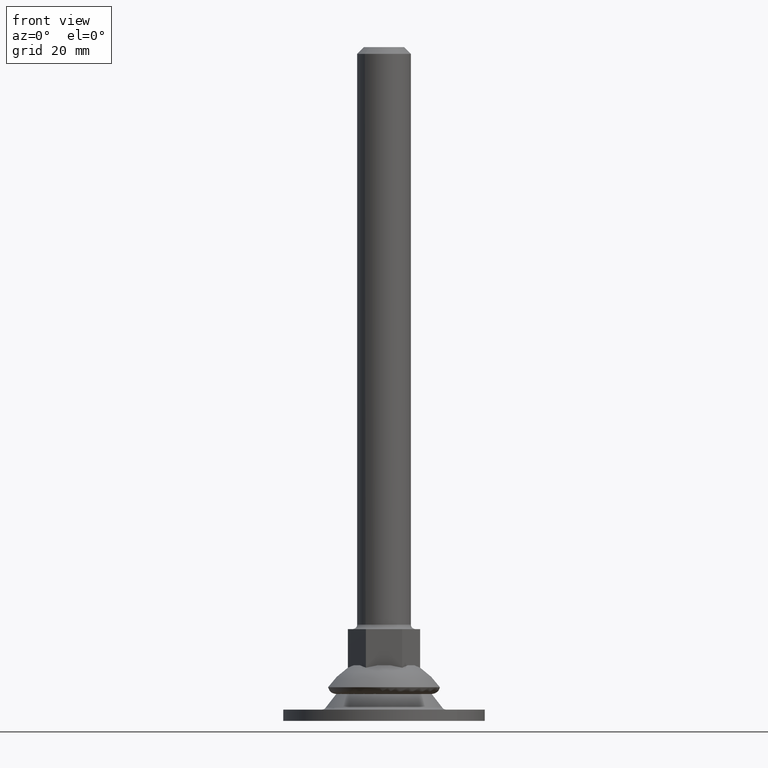
[diagram: clean part render]
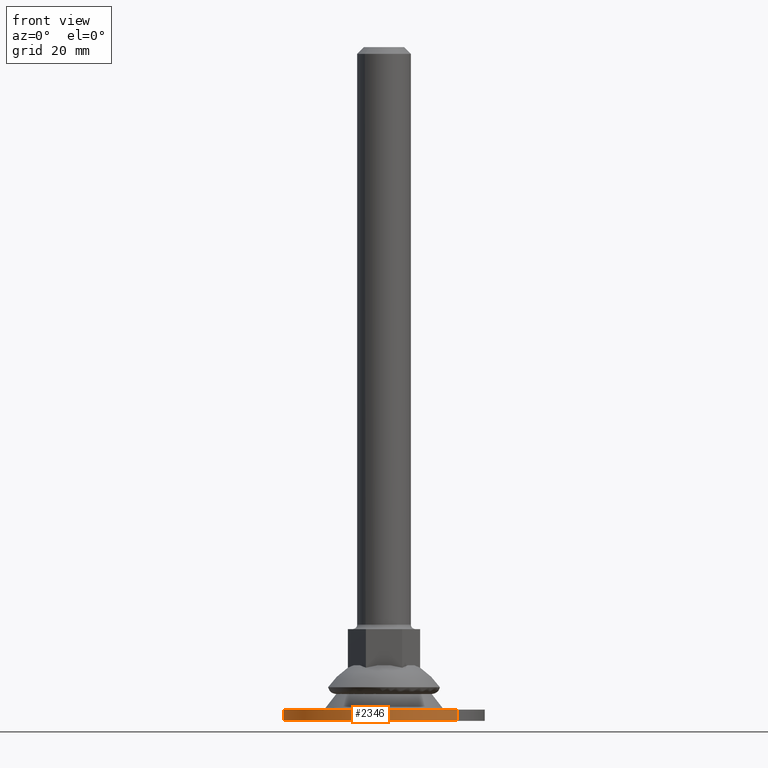
[diagram: same view with one face highlighted and labeled with its STEP entity id]
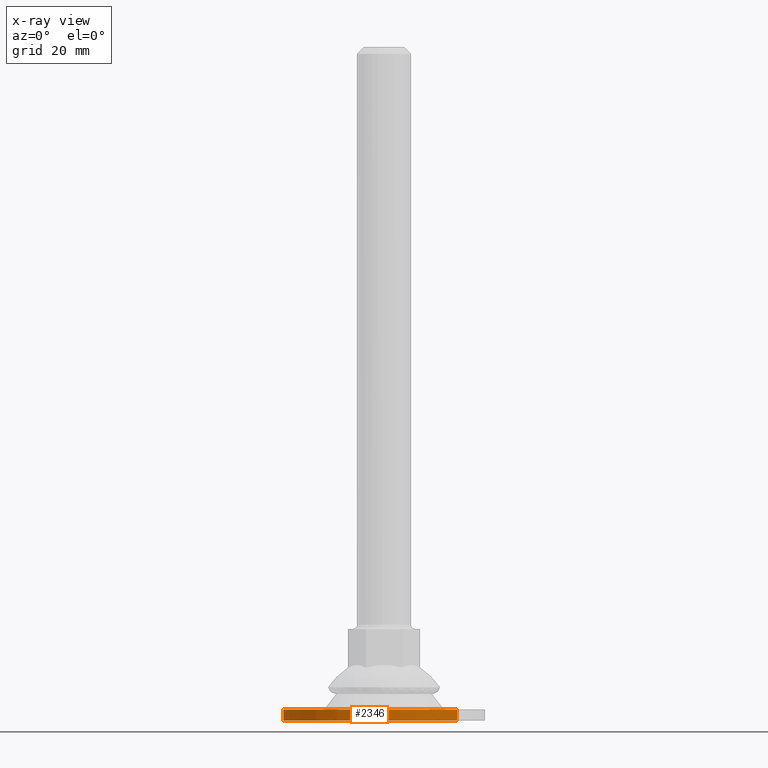
[diagram: x-ray of the same camera — body ghosted, the highlighted face saturated]
A machine part, front view. The second image highlights one B-rep face of the part: STEP entity #2346.
The next image is the same camera in x-ray: the body ghosted, the highlighted face saturated — about 0% of this face is hidden behind the body in this view.
In plain terms, the highlighted face is a freeform B-spline surface patch.
Its self-contained STEP definition (entity closure, byte-faithful):
#1972=CARTESIAN_POINT('',(-22.500000000000000,0.0,0.0));
#1973=VERTEX_POINT('',#1972);
#1974=CARTESIAN_POINT('',(-16.320922946411649,15.487977669410711,1.926750E-011));
#1975=VERTEX_POINT('',#1974);
#1976=CARTESIAN_POINT('',(-22.500000000000000,0.0,0.0));
#1977=CARTESIAN_POINT('',(-22.500113968359958,1.290084206286593,1.604903E-012));
#1978=CARTESIAN_POINT('',(-22.304316878680979,3.558807770512854,4.427262E-012));
#1979=CARTESIAN_POINT('',(-21.570845771034950,6.591993442626992,8.200634E-012));
#1980=CARTESIAN_POINT('',(-20.553730517630839,9.303666790284426,1.157404E-011));
#1981=CARTESIAN_POINT('',(-18.948622482158640,12.339519573251810,1.535073E-011));
#1982=CARTESIAN_POINT('',(-17.362230880133900,14.390982772080751,1.790281E-011));
#1983=CARTESIAN_POINT('',(-16.320922946411649,15.487977669410711,1.926750E-011));
#1984=B_SPLINE_CURVE_WITH_KNOTS('',3,(#1976,#1977,#1978,#1979,#1980,#1981,#1982,#1983),.UNSPECIFIED.,.F.,.U.,(4,1,1,1,1,4),(0.000000021520435,3.870236930279521,6.806298257423510,9.341933864975838,12.544912210286389,17.082434980384420),.UNSPECIFIED.);
#1985=EDGE_CURVE('',#1973,#1975,#1984,.T.);
#2018=CARTESIAN_POINT('',(16.320922946411589,-15.487977669410650,1.926750E-011));
#2019=VERTEX_POINT('',#2018);
#2031=CARTESIAN_POINT('',(-0.000001948370870,-22.499999999999918,0.0));
#2032=VERTEX_POINT('',#2031);
#2033=CARTESIAN_POINT('',(16.320922946411589,-15.487977669410650,1.926750E-011));
#2034=CARTESIAN_POINT('',(15.633546268588219,-16.212375930340269,1.845603E-011));
#2035=CARTESIAN_POINT('',(14.127063404015111,-17.601712875655512,1.667756E-011));
#2036=CARTESIAN_POINT('',(11.272296136396569,-19.591640416899580,1.330740E-011));
#2037=CARTESIAN_POINT('',(8.079863267181958,-21.109430929483221,9.538602E-012));
#2038=CARTESIAN_POINT('',(4.184616112460575,-22.225229006534391,4.940108E-012));
#2039=CARTESIAN_POINT('',(1.569279916707052,-22.500228761932291,1.852600E-012));
#2040=CARTESIAN_POINT('',(-0.000001948370870,-22.499999999999918,0.0));
#2041=B_SPLINE_CURVE_WITH_KNOTS('',3,(#2033,#2034,#2035,#2036,#2037,#2038,#2039,#2040),.UNSPECIFIED.,.F.,.U.,(4,1,1,1,1,4),(0.000000026468665,2.995858530149059,6.134411292749894,10.414192398244881,13.552743324543650,18.260539566417702),.UNSPECIFIED.);
#2042=EDGE_CURVE('',#2019,#2032,#2041,.T.);
#2044=CARTESIAN_POINT('',(-0.000001948370870,-22.499999999999918,0.0));
#2045=CARTESIAN_POINT('',(-1.288549063874959,-22.500108094975161,0.0));
#2046=CARTESIAN_POINT('',(-3.681510481042210,-22.293843641591870,0.0));
#2047=CARTESIAN_POINT('',(-7.486303176441662,-21.340959863895449,0.0));
#2048=CARTESIAN_POINT('',(-10.780225216150290,-19.868819913958021,0.0));
#2049=CARTESIAN_POINT('',(-13.508033697709161,-18.057900290719580,0.0));
#2050=CARTESIAN_POINT('',(-15.934842958918161,-16.003423374684878,0.0));
#2051=CARTESIAN_POINT('',(-18.101392941685880,-13.537962900726860,0.0));
#2052=CARTESIAN_POINT('',(-20.241807876814299,-10.088162635037049,0.0));
#2053=CARTESIAN_POINT('',(-21.599145246597519,-6.694199578704914,0.0));
#2054=CARTESIAN_POINT('',(-22.353587187834940,-3.129281959744369,0.0));
#2055=CARTESIAN_POINT('',(-22.500042015964620,-1.058435247443339,0.0));
#2056=CARTESIAN_POINT('',(-22.500000000000000,0.0,0.0));
#2057=B_SPLINE_CURVE_WITH_KNOTS('',3,(#2044,#2045,#2046,#2047,#2048,#2049,#2050,#2051,#2052,#2053,#2054,#2055,#2056),.UNSPECIFIED.,.F.,.U.,(4,1,1,1,1,1,1,1,1,1,4),(0.000000092859231,3.865624436657459,7.179038418417516,11.734980350779800,14.634205865737540,16.981199710401750,21.260981191600870,24.436336740466249,29.130349392977148,32.167666723673442,35.342971697531432),.UNSPECIFIED.);
#2058=EDGE_CURVE('',#2032,#1973,#2057,.T.);
#2218=CARTESIAN_POINT('',(-16.320922947001939,15.487977668788670,2.499999999999885));
#2219=VERTEX_POINT('',#2218);
#2220=CARTESIAN_POINT('',(-16.320922947001939,15.487977668788670,2.499999999999885));
#2221=CARTESIAN_POINT('',(-16.320922946411649,15.487977669410711,1.926750E-011));
#2222=QUASI_UNIFORM_CURVE('',1,(#2220,#2221),.UNSPECIFIED.,.F.,.U.);
#2223=EDGE_CURVE('',#2219,#1975,#2222,.T.);
#2256=CARTESIAN_POINT('',(16.320922947001868,-15.487977668788609,2.499999999999885));
#2257=VERTEX_POINT('',#2256);
#2269=CARTESIAN_POINT('',(16.320922947001868,-15.487977668788609,2.499999999999885));
#2270=CARTESIAN_POINT('',(16.320922946411589,-15.487977669410650,1.926750E-011));
#2271=QUASI_UNIFORM_CURVE('',1,(#2269,#2270),.UNSPECIFIED.,.F.,.U.);
#2272=EDGE_CURVE('',#2257,#2019,#2271,.T.);
#2279=CARTESIAN_POINT('',(16.320923347776471,-15.487977953109461,2.562499999999882));
#2280=CARTESIAN_POINT('',(0.832945394667007,-31.808901300885921,2.562499999999882));
#2281=CARTESIAN_POINT('',(-15.487977953109461,-16.320923347776471,2.562499999999882));
#2282=CARTESIAN_POINT('',(-31.808901300885921,-0.832945394667007,2.562499999999882));
#2283=CARTESIAN_POINT('',(-16.320923347776471,15.487977953109461,2.562499999999882));
#2284=CARTESIAN_POINT('',(16.320923347776471,-15.487977953109461,-0.064062499999997));
#2285=CARTESIAN_POINT('',(0.832945394667007,-31.808901300885921,-0.064062499999997));
#2286=CARTESIAN_POINT('',(-15.487977953109461,-16.320923347776471,-0.064062499999997));
#2287=CARTESIAN_POINT('',(-31.808901300885921,-0.832945394667007,-0.064062499999997));
#2288=CARTESIAN_POINT('',(-16.320923347776471,15.487977953109461,-0.064062499999997));
#2296=(BOUNDED_SURFACE()B_SPLINE_SURFACE(2,1,((#2279,#2284),(#2280,#2285),(#2281,#2286),(#2282,#2287),(#2283,#2288)),.UNSPECIFIED.,.F.,.F.,.U.)B_SPLINE_SURFACE_WITH_KNOTS((3,2,3),(2,2),(0.0,37.279220613578552,74.558441227157090),(0.0,2.626562499999880),.UNSPECIFIED.)GEOMETRIC_REPRESENTATION_ITEM()RATIONAL_B_SPLINE_SURFACE(((1.0,1.0),(0.707106781186548,0.707106781186548),(1.0,1.0),(0.707106781186548,0.707106781186548),(1.0,1.0)))REPRESENTATION_ITEM('')SURFACE());
#2297=ORIENTED_EDGE('',*,*,#1985,.F.);
#2298=ORIENTED_EDGE('',*,*,#2058,.F.);
#2299=ORIENTED_EDGE('',*,*,#2042,.F.);
#2300=ORIENTED_EDGE('',*,*,#2272,.F.);
#2301=CARTESIAN_POINT('',(-0.000001948370870,-22.499999999999918,2.499999999999885));
#2302=VERTEX_POINT('',#2301);
#2303=CARTESIAN_POINT('',(16.320922947001868,-15.487977668788609,2.499999999999885));
#2304=CARTESIAN_POINT('',(15.633547119501280,-16.212377071937549,2.499999999999886));
#2305=CARTESIAN_POINT('',(14.127070336419999,-17.601729466027599,2.499999999999886));
#2306=CARTESIAN_POINT('',(11.428674428519370,-19.482500000979599,2.499999999999884));
#2307=CARTESIAN_POINT('',(8.002396399235431,-21.165366490382191,2.499999999999881));
#2308=CARTESIAN_POINT('',(4.089596750329968,-22.259321119338239,2.499999999999898));
#2309=CARTESIAN_POINT('',(1.283938987589492,-22.500078407540052,2.499999999999866));
#2310=CARTESIAN_POINT('',(-0.000001948370870,-22.499999999999918,2.499999999999885));
#2311=B_SPLINE_CURVE_WITH_KNOTS('',3,(#2303,#2304,#2305,#2306,#2307,#2308,#2309,#2310),.UNSPECIFIED.,.F.,.U.,(4,1,1,1,1,4),(0.000000026461219,2.995858530284378,6.134411293033953,9.843570402792269,14.408707755415250,18.260539567275281),.UNSPECIFIED.);
#2312=EDGE_CURVE('',#2257,#2302,#2311,.T.);
#2313=ORIENTED_EDGE('',*,*,#2312,.T.);
#2314=CARTESIAN_POINT('',(-22.500000000000000,0.0,2.499999999999885));
#2315=VERTEX_POINT('',#2314);
#2316=CARTESIAN_POINT('',(-0.000001948370870,-22.499999999999918,2.499999999999885));
#2317=CARTESIAN_POINT('',(-1.288549063876429,-22.500108094975872,2.499999999999892));
#2318=CARTESIAN_POINT('',(-3.681510481343545,-22.293843641583159,2.499999999999874));
#2319=CARTESIAN_POINT('',(-7.486303174159327,-21.340959863944722,2.499999999999884));
#2320=CARTESIAN_POINT('',(-10.780225224119290,-19.868819913707028,2.499999999999893));
#2321=CARTESIAN_POINT('',(-13.508033669421749,-18.057900293185298,2.499999999999872));
#2322=CARTESIAN_POINT('',(-15.934843131569741,-16.003423363932050,2.499999999999907));
#2323=CARTESIAN_POINT('',(-18.101420599154181,-13.537974525801820,2.499999999999868));
#2324=CARTESIAN_POINT('',(-19.828168488241442,-10.754542270221640,2.499999999999898));
#2325=CARTESIAN_POINT('',(-21.064545345878660,-8.076945879480817,2.499999999999889));
#2326=CARTESIAN_POINT('',(-22.165637323586221,-4.601794522954205,2.499999999999868));
#2327=CARTESIAN_POINT('',(-22.500368229556930,-1.748768444734339,2.499999999999923));
#2328=CARTESIAN_POINT('',(-22.500000000000000,0.0,2.499999999999885));
#2329=B_SPLINE_CURVE_WITH_KNOTS('',3,(#2316,#2317,#2318,#2319,#2320,#2321,#2322,#2323,#2324,#2325,#2326,#2327,#2328),.UNSPECIFIED.,.F.,.U.,(4,1,1,1,1,1,1,1,1,1,4),(0.000000092859231,3.865624436657459,7.179038418417516,11.734980350779800,14.634205865737540,16.981199710401750,21.260981191600870,24.436336740466249,26.783346964920600,30.096761194021759,35.342971697531432),.UNSPECIFIED.);
#2330=EDGE_CURVE('',#2302,#2315,#2329,.T.);
#2331=ORIENTED_EDGE('',*,*,#2330,.T.);
#2332=CARTESIAN_POINT('',(-22.500000000000000,0.0,2.499999999999885));
#2333=CARTESIAN_POINT('',(-22.500120849535271,1.290086266902214,2.499999999999890));
#2334=CARTESIAN_POINT('',(-22.323483509901180,3.336372102743094,2.499999999999881));
#2335=CARTESIAN_POINT('',(-21.606218439499148,6.507848408544875,2.499999999999886));
#2336=CARTESIAN_POINT('',(-20.464881041688830,9.606853773671839,2.499999999999898));
#2337=CARTESIAN_POINT('',(-18.638847887898070,12.781405891306120,2.499999999999843));
#2338=CARTESIAN_POINT('',(-17.086502952973021,14.681296102691570,2.499999999999935));
#2339=CARTESIAN_POINT('',(-16.320922947001939,15.487977668788670,2.499999999999885));
#2340=B_SPLINE_CURVE_WITH_KNOTS('',3,(#2332,#2333,#2334,#2335,#2336,#2337,#2338,#2339),.UNSPECIFIED.,.F.,.U.,(4,1,1,1,1,4),(0.000000021519462,3.870236930084717,6.139006360072395,9.742319940872466,13.746023581165620,17.082434979526880),.UNSPECIFIED.);
#2341=EDGE_CURVE('',#2315,#2219,#2340,.T.);
#2342=ORIENTED_EDGE('',*,*,#2341,.T.);
#2343=ORIENTED_EDGE('',*,*,#2223,.T.);
#2344=EDGE_LOOP('',(#2297,#2298,#2299,#2300,#2313,#2331,#2342,#2343));
#2345=FACE_OUTER_BOUND('',#2344,.T.);
#2346=ADVANCED_FACE('',(#2345),#2296,.T.);